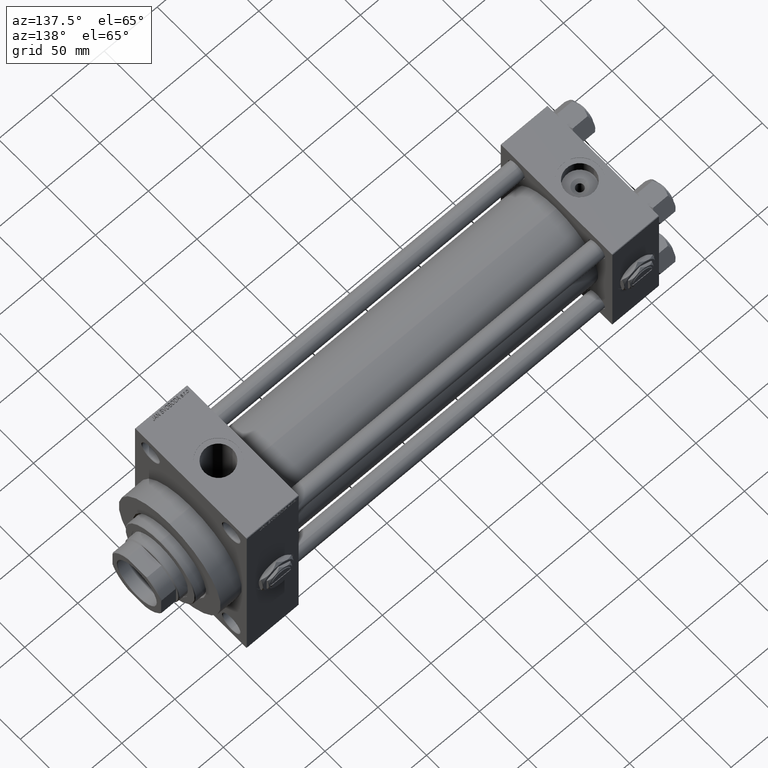
[diagram: clean part render]
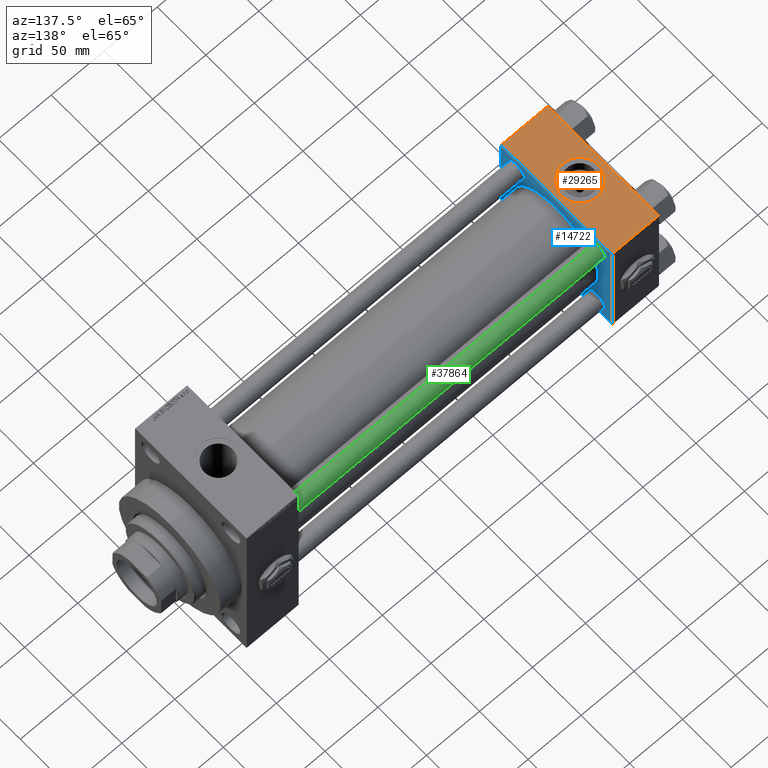
[diagram: same view with three faces highlighted in distinct colors, each labeled with its STEP entity id]
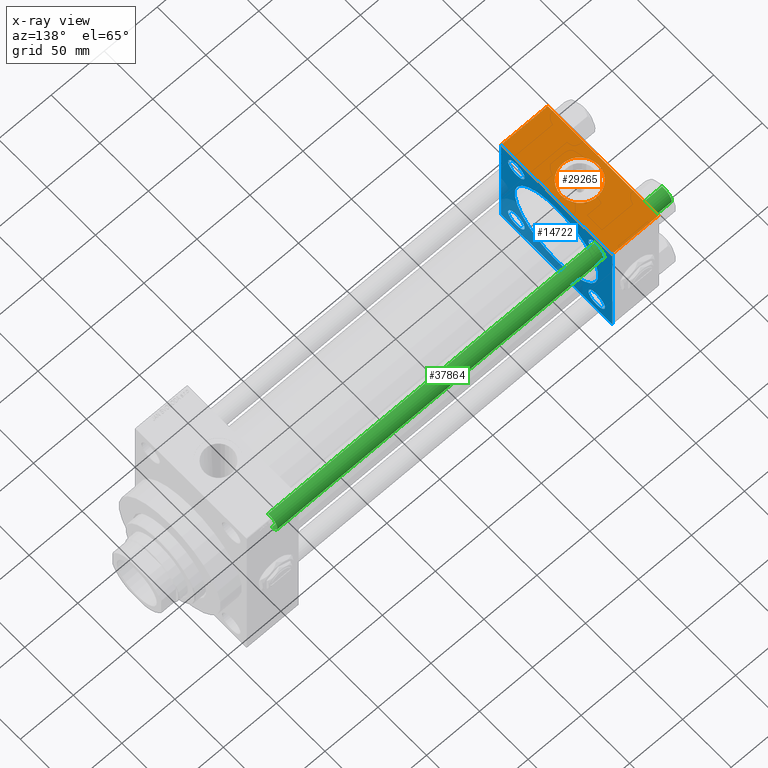
[diagram: x-ray of the same camera — body ghosted, the three highlighted faces saturated]
A machine part, auxiliary view with three faces highlighted in distinct colors.
The next image is the same camera in x-ray (body ghosted, the three faces saturated) — at least one of them is partly hidden behind the body in this view.
Their STEP definitions:

[orange] entity #29265 — the highlighted planar face has unit normal (0, 0, -1).
#936 = EDGE_CURVE ( 'NONE', #49717, #21281, #25876, .T. ) ;
#1018 = CARTESIAN_POINT ( 'NONE',  ( 44.00000000000000000, 57.49999999999999289, 57.50000000000000711 ) ) ;
#1052 = EDGE_CURVE ( 'NONE', #45989, #48460, #34886, .T. ) ;
#1973 = LINE ( 'NONE', #9288, #38261 ) ;
#2715 = CARTESIAN_POINT ( 'NONE',  ( 44.00000000000000000, -57.00000000000003553, 57.49999999999999289 ) ) ;
#2728 = VERTEX_POINT ( 'NONE', #46574 ) ;
#3112 = CARTESIAN_POINT ( 'NONE',  ( 0.000000000000000000, -57.00000000000003553, 57.49999999999999289 ) ) ;
#5319 = EDGE_CURVE ( 'NONE', #40228, #49717, #29425, .T. ) ;
#6004 = ORIENTED_EDGE ( 'NONE', *, *, #5319, .T. ) ;
#7018 = LINE ( 'NONE', #49097, #15883 ) ;
#7951 = DIRECTION ( 'NONE',  ( 1.000000000000000000, 0.000000000000000000, 0.000000000000000000 ) ) ;
#8478 = ORIENTED_EDGE ( 'NONE', *, *, #9591, .F. ) ;
#9288 = CARTESIAN_POINT ( 'NONE',  ( 0.000000000000000000, 57.00000000000000711, 57.50000000000000711 ) ) ;
#9591 = EDGE_CURVE ( 'NONE', #2728, #21281, #7018, .T. ) ;
#10241 = CARTESIAN_POINT ( 'NONE',  ( 44.00000000000000000, -57.00000000000003553, 57.49999999999999289 ) ) ;
#10556 = AXIS2_PLACEMENT_3D ( 'NONE', #1018, #28012, #20439 ) ;
#12458 = ORIENTED_EDGE ( 'NONE', *, *, #1052, .F. ) ;
#12819 = DIRECTION ( 'NONE',  ( -1.000000000000000000, 0.000000000000000000, 0.000000000000000000 ) ) ;
#14896 = EDGE_LOOP ( 'NONE', ( #6004, #20852, #8478, #36573 ) ) ;
#15883 = VECTOR ( 'NONE', #47920, 1000.000000000000000 ) ;
#18802 = AXIS2_PLACEMENT_3D ( 'NONE', #31401, #39203, #7951 ) ;
#19110 = CARTESIAN_POINT ( 'NONE',  ( 22.00000000000000000, -8.673617379884035472E-15, 57.50000000000000000 ) ) ;
#19950 = FACE_OUTER_BOUND ( 'NONE', #14896, .T. ) ;
#20439 = DIRECTION ( 'NONE',  ( 0.000000000000000000, 1.000000000000000000, 1.206764157201257045E-16 ) ) ;
#20852 = ORIENTED_EDGE ( 'NONE', *, *, #936, .T. ) ;
#21281 = VERTEX_POINT ( 'NONE', #2715 ) ;
#21360 = DIRECTION ( 'NONE',  ( 0.000000000000000000, -1.000000000000000000, -1.206764157201257045E-16 ) ) ;
#21842 = DIRECTION ( 'NONE',  ( 1.000000000000000000, 0.000000000000000000, 0.000000000000000000 ) ) ;
#25876 = LINE ( 'NONE', #10241, #30894 ) ;
#26902 = DIRECTION ( 'NONE',  ( 1.000000000000000000, 0.000000000000000000, 0.000000000000000000 ) ) ;
#28012 = DIRECTION ( 'NONE',  ( 0.000000000000000000, 1.206764157201257045E-16, -1.000000000000000000 ) ) ;
#29128 = CIRCLE ( 'NONE', #37158, 17.50000000000000000 ) ;
#29265 = ADVANCED_FACE ( 'NONE', ( #43119, #19950 ), #39097, .F. ) ;
#29425 = LINE ( 'NONE', #40015, #40662 ) ;
#29829 = EDGE_CURVE ( 'NONE', #48460, #45989, #29128, .T. ) ;
#30290 = CARTESIAN_POINT ( 'NONE',  ( 4.499999999999997335, -6.530485481376167224E-15, 57.50000000000000000 ) ) ;
#30894 = VECTOR ( 'NONE', #21842, 1000.000000000000000 ) ;
#31401 = CARTESIAN_POINT ( 'NONE',  ( 22.00000000000000000, -8.673617379884035472E-15, 57.50000000000000000 ) ) ;
#33682 = ORIENTED_EDGE ( 'NONE', *, *, #29829, .F. ) ;
#33975 = DIRECTION ( 'NONE',  ( 0.000000000000000000, 0.000000000000000000, 1.000000000000000000 ) ) ;
#34886 = CIRCLE ( 'NONE', #18802, 17.50000000000000000 ) ;
#36573 = ORIENTED_EDGE ( 'NONE', *, *, #43347, .T. ) ;
#37158 = AXIS2_PLACEMENT_3D ( 'NONE', #19110, #33975, #26902 ) ;
#38261 = VECTOR ( 'NONE', #12819, 1000.000000000000000 ) ;
#39080 = CARTESIAN_POINT ( 'NONE',  ( 0.000000000000000000, 57.00000000000000711, 57.50000000000000711 ) ) ;
#39097 = PLANE ( 'NONE',  #10556 ) ;
#39203 = DIRECTION ( 'NONE',  ( 0.000000000000000000, 0.000000000000000000, 1.000000000000000000 ) ) ;
#40015 = CARTESIAN_POINT ( 'NONE',  ( 0.000000000000000000, 57.49999999999999289, 57.50000000000000711 ) ) ;
#40228 = VERTEX_POINT ( 'NONE', #39080 ) ;
#40662 = VECTOR ( 'NONE', #21360, 1000.000000000000000 ) ;
#43119 = FACE_BOUND ( 'NONE', #44867, .T. ) ;
#43347 = EDGE_CURVE ( 'NONE', #2728, #40228, #1973, .T. ) ;
#44867 = EDGE_LOOP ( 'NONE', ( #33682, #12458 ) ) ;
#45989 = VERTEX_POINT ( 'NONE', #30290 ) ;
#46574 = CARTESIAN_POINT ( 'NONE',  ( 44.00000000000000000, 57.00000000000000711, 57.50000000000000711 ) ) ;
#47920 = DIRECTION ( 'NONE',  ( 0.000000000000000000, -1.000000000000000000, -1.206764157201257045E-16 ) ) ;
#48396 = CARTESIAN_POINT ( 'NONE',  ( 39.50000000000000000, -8.673617379884035472E-15, 57.50000000000000000 ) ) ;
#48460 = VERTEX_POINT ( 'NONE', #48396 ) ;
#49097 = CARTESIAN_POINT ( 'NONE',  ( 44.00000000000000000, 57.49999999999999289, 57.50000000000000711 ) ) ;
#49717 = VERTEX_POINT ( 'NONE', #3112 ) ;

[blue] entity #14722 — the highlighted planar face has unit normal (-1, 0, 0).
#271 = DIRECTION ( 'NONE',  ( -0.000000000000000000, 0.7071067811865376918, 0.7071067811865573427 ) ) ;
#321 = LINE ( 'NONE', #23006, #47059 ) ;
#413 = CIRCLE ( 'NONE', #35042, 8.500000000000007105 ) ;
#522 = FACE_OUTER_BOUND ( 'NONE', #1982, .T. ) ;
#557 = VERTEX_POINT ( 'NONE', #27599 ) ;
#628 = VERTEX_POINT ( 'NONE', #6385 ) ;
#760 = FACE_BOUND ( 'NONE', #24674, .T. ) ;
#814 = VERTEX_POINT ( 'NONE', #16410 ) ;
#1428 = VERTEX_POINT ( 'NONE', #28565 ) ;
#1535 = VERTEX_POINT ( 'NONE', #14655 ) ;
#1606 = AXIS2_PLACEMENT_3D ( 'NONE', #43040, #39762, #8510 ) ;
#1982 = EDGE_LOOP ( 'NONE', ( #37587, #22250, #45370, #42335, #19696, #2404, #26581, #33292 ) ) ;
#2086 = DIRECTION ( 'NONE',  ( 0.000000000000000000, 0.000000000000000000, 1.000000000000000000 ) ) ;
#2214 = DIRECTION ( 'NONE',  ( -1.000000000000000000, 0.000000000000000000, -0.000000000000000000 ) ) ;
#2404 = ORIENTED_EDGE ( 'NONE', *, *, #38446, .T. ) ;
#2715 = CARTESIAN_POINT ( 'NONE',  ( 44.00000000000000000, -57.00000000000003553, 57.49999999999999289 ) ) ;
#2728 = VERTEX_POINT ( 'NONE', #46574 ) ;
#3305 = DIRECTION ( 'NONE',  ( 0.000000000000000000, -0.7071067811865573427, 0.7071067811865376918 ) ) ;
#3402 = VERTEX_POINT ( 'NONE', #46149 ) ;
#3458 = CIRCLE ( 'NONE', #5038, 8.500000000000007105 ) ;
#3528 = VECTOR ( 'NONE', #271, 1000.000000000000114 ) ;
#3680 = CARTESIAN_POINT ( 'NONE',  ( 43.99999999999998579, 2.663896022368408223E-15, -43.00000000000000000 ) ) ;
#4287 = FACE_BOUND ( 'NONE', #17625, .T. ) ;
#4465 = EDGE_CURVE ( 'NONE', #48562, #1535, #321, .T. ) ;
#5038 = AXIS2_PLACEMENT_3D ( 'NONE', #26580, #38168, #42450 ) ;
#5365 = CARTESIAN_POINT ( 'NONE',  ( 43.99999999999998579, -2.602085213965210642E-15, 43.00000000000000000 ) ) ;
#5815 = CARTESIAN_POINT ( 'NONE',  ( 44.00000000000000000, -41.34999999999998721, 41.35000000000000853 ) ) ;
#6062 = VERTEX_POINT ( 'NONE', #17593 ) ;
#6359 = CARTESIAN_POINT ( 'NONE',  ( 44.00000000000000000, -57.50000000000000711, 57.49999999999999289 ) ) ;
#6385 = CARTESIAN_POINT ( 'NONE',  ( 44.00000000000000000, -41.34999999999998721, 32.85000000000000142 ) ) ;
#6605 = LINE ( 'NONE', #30562, #32626 ) ;
#6615 = EDGE_CURVE ( 'NONE', #26214, #3402, #24007, .T. ) ;
#6852 = AXIS2_PLACEMENT_3D ( 'NONE', #36750, #2214, #17601 ) ;
#6871 = VERTEX_POINT ( 'NONE', #20858 ) ;
#6880 = AXIS2_PLACEMENT_3D ( 'NONE', #31745, #47086, #12583 ) ;
#6888 = CARTESIAN_POINT ( 'NONE',  ( 44.00000000000000000, -41.34999999999998721, 41.35000000000000853 ) ) ;
#6948 = CARTESIAN_POINT ( 'NONE',  ( 44.00000000000000000, 57.49999999999999289, 57.00000000000003553 ) ) ;
#7018 = LINE ( 'NONE', #49097, #15883 ) ;
#8087 = CIRCLE ( 'NONE', #10494, 8.500000000000007105 ) ;
#8510 = DIRECTION ( 'NONE',  ( 0.000000000000000000, 0.000000000000000000, 1.000000000000000000 ) ) ;
#8908 = AXIS2_PLACEMENT_3D ( 'NONE', #13739, #25329, #9693 ) ;
#9298 = EDGE_LOOP ( 'NONE', ( #44463, #31875 ) ) ;
#9399 = DIRECTION ( 'NONE',  ( 0.000000000000000000, 0.000000000000000000, -1.000000000000000000 ) ) ;
#9591 = EDGE_CURVE ( 'NONE', #2728, #21281, #7018, .T. ) ;
#9693 = DIRECTION ( 'NONE',  ( 0.000000000000000000, 0.000000000000000000, 1.000000000000000000 ) ) ;
#10494 = AXIS2_PLACEMENT_3D ( 'NONE', #6888, #34369, #30348 ) ;
#10941 = CIRCLE ( 'NONE', #35890, 8.500000000000007105 ) ;
#11132 = EDGE_CURVE ( 'NONE', #49224, #6062, #31146, .T. ) ;
#11276 = EDGE_LOOP ( 'NONE', ( #45044, #45313 ) ) ;
#12127 = CARTESIAN_POINT ( 'NONE',  ( 44.00000000000000000, 0.000000000000000000, 0.000000000000000000 ) ) ;
#12412 = CARTESIAN_POINT ( 'NONE',  ( 44.00000000000000000, 57.49999999999999289, 57.50000000000000711 ) ) ;
#12583 = DIRECTION ( 'NONE',  ( 0.000000000000000000, 0.000000000000000000, 1.000000000000000000 ) ) ;
#13324 = VECTOR ( 'NONE', #49342, 1000.000000000000114 ) ;
#13739 = CARTESIAN_POINT ( 'NONE',  ( 44.00000000000000000, 41.34999999999999432, -41.35000000000000142 ) ) ;
#14655 = CARTESIAN_POINT ( 'NONE',  ( 44.00000000000000000, -57.00000000000000711, -57.50000000000000711 ) ) ;
#14722 = ADVANCED_FACE ( 'NONE', ( #4287, #19939, #760, #19692, #35073, #522 ), #15904, .F. ) ;
#15012 = VERTEX_POINT ( 'NONE', #3680 ) ;
#15883 = VECTOR ( 'NONE', #47920, 1000.000000000000000 ) ;
#15904 = PLANE ( 'NONE',  #32861 ) ;
#16141 = DIRECTION ( 'NONE',  ( -1.000000000000000000, 0.000000000000000000, -0.000000000000000000 ) ) ;
#16146 = LINE ( 'NONE', #31786, #18053 ) ;
#16410 = CARTESIAN_POINT ( 'NONE',  ( 44.00000000000000000, 41.34999999999999432, 49.85000000000001563 ) ) ;
#16684 = DIRECTION ( 'NONE',  ( -1.000000000000000000, 0.000000000000000000, -0.000000000000000000 ) ) ;
#16939 = DIRECTION ( 'NONE',  ( 0.000000000000000000, 0.000000000000000000, -1.000000000000000000 ) ) ;
#17593 = CARTESIAN_POINT ( 'NONE',  ( 44.00000000000000000, -41.34999999999998721, -32.85000000000000142 ) ) ;
#17601 = DIRECTION ( 'NONE',  ( 0.000000000000000000, 0.000000000000000000, 1.000000000000000000 ) ) ;
#17611 = ORIENTED_EDGE ( 'NONE', *, *, #33561, .T. ) ;
#17625 = EDGE_LOOP ( 'NONE', ( #40528, #17611 ) ) ;
#18053 = VECTOR ( 'NONE', #47133, 1000.000000000000114 ) ;
#18113 = LINE ( 'NONE', #33983, #13324 ) ;
#18405 = ORIENTED_EDGE ( 'NONE', *, *, #26330, .F. ) ;
#19441 = LINE ( 'NONE', #39324, #3528 ) ;
#19692 = FACE_BOUND ( 'NONE', #9298, .T. ) ;
#19696 = ORIENTED_EDGE ( 'NONE', *, *, #9591, .T. ) ;
#19910 = VERTEX_POINT ( 'NONE', #5365 ) ;
#19939 = FACE_BOUND ( 'NONE', #11276, .T. ) ;
#20754 = DIRECTION ( 'NONE',  ( -1.000000000000000000, 0.000000000000000000, -0.000000000000000000 ) ) ;
#20858 = CARTESIAN_POINT ( 'NONE',  ( 44.00000000000000000, 41.34999999999999432, -32.84999999999999432 ) ) ;
#21281 = VERTEX_POINT ( 'NONE', #2715 ) ;
#21945 = ORIENTED_EDGE ( 'NONE', *, *, #23539, .F. ) ;
#22233 = AXIS2_PLACEMENT_3D ( 'NONE', #29056, #48916, #48662 ) ;
#22250 = ORIENTED_EDGE ( 'NONE', *, *, #40270, .T. ) ;
#22993 = VECTOR ( 'NONE', #16939, 1000.000000000000000 ) ;
#23006 = CARTESIAN_POINT ( 'NONE',  ( 44.00000000000000000, 57.49999999999999289, -57.49999999999999289 ) ) ;
#23352 = CIRCLE ( 'NONE', #1606, 43.00000000000000000 ) ;
#23539 = EDGE_CURVE ( 'NONE', #15012, #19910, #23352, .T. ) ;
#23814 = CARTESIAN_POINT ( 'NONE',  ( 43.99999999999998579, -2.602085213965210642E-15, 0.000000000000000000 ) ) ;
#24007 = LINE ( 'NONE', #12412, #22993 ) ;
#24550 = CARTESIAN_POINT ( 'NONE',  ( 44.00000000000000000, 41.34999999999999432, -49.85000000000001563 ) ) ;
#24674 = EDGE_LOOP ( 'NONE', ( #41786, #31934 ) ) ;
#24989 = CARTESIAN_POINT ( 'NONE',  ( 44.00000000000000000, -57.50000000000000711, -57.00000000000000711 ) ) ;
#25329 = DIRECTION ( 'NONE',  ( -1.000000000000000000, 0.000000000000000000, -0.000000000000000000 ) ) ;
#25551 = VERTEX_POINT ( 'NONE', #24550 ) ;
#26214 = VERTEX_POINT ( 'NONE', #6948 ) ;
#26330 = EDGE_CURVE ( 'NONE', #19910, #15012, #41828, .T. ) ;
#26546 = AXIS2_PLACEMENT_3D ( 'NONE', #23814, #42956, #43213 ) ;
#26580 = CARTESIAN_POINT ( 'NONE',  ( 44.00000000000000000, -41.34999999999998721, -41.35000000000000853 ) ) ;
#26581 = ORIENTED_EDGE ( 'NONE', *, *, #42070, .T. ) ;
#27089 = EDGE_CURVE ( 'NONE', #1428, #628, #8087, .T. ) ;
#27599 = CARTESIAN_POINT ( 'NONE',  ( 44.00000000000000000, 41.34999999999999432, 32.84999999999999432 ) ) ;
#27879 = EDGE_CURVE ( 'NONE', #6871, #25551, #45920, .T. ) ;
#28153 = VERTEX_POINT ( 'NONE', #36862 ) ;
#28565 = CARTESIAN_POINT ( 'NONE',  ( 44.00000000000000000, -41.34999999999998721, 49.85000000000002274 ) ) ;
#28583 = CARTESIAN_POINT ( 'NONE',  ( 44.00000000000000000, 41.34999999999999432, 41.35000000000000142 ) ) ;
#29056 = CARTESIAN_POINT ( 'NONE',  ( 44.00000000000000000, -41.34999999999998721, -41.35000000000000853 ) ) ;
#29275 = DIRECTION ( 'NONE',  ( 0.000000000000000000, 0.000000000000000000, 1.000000000000000000 ) ) ;
#30348 = DIRECTION ( 'NONE',  ( 0.000000000000000000, 0.000000000000000000, 1.000000000000000000 ) ) ;
#30562 = CARTESIAN_POINT ( 'NONE',  ( 44.00000000000000000, 57.00000000000000711, 57.50000000000000711 ) ) ;
#31146 = CIRCLE ( 'NONE', #22233, 8.500000000000007105 ) ;
#31745 = CARTESIAN_POINT ( 'NONE',  ( 44.00000000000000000, 41.34999999999999432, -41.35000000000000142 ) ) ;
#31786 = CARTESIAN_POINT ( 'NONE',  ( 44.00000000000000000, -57.00000000000000711, -57.50000000000000711 ) ) ;
#31801 = VECTOR ( 'NONE', #9399, 1000.000000000000000 ) ;
#31843 = CIRCLE ( 'NONE', #6880, 8.500000000000007105 ) ;
#31875 = ORIENTED_EDGE ( 'NONE', *, *, #42037, .T. ) ;
#31934 = ORIENTED_EDGE ( 'NONE', *, *, #27089, .T. ) ;
#32626 = VECTOR ( 'NONE', #3305, 1000.000000000000114 ) ;
#32861 = AXIS2_PLACEMENT_3D ( 'NONE', #12127, #16141, #47819 ) ;
#33292 = ORIENTED_EDGE ( 'NONE', *, *, #36852, .T. ) ;
#33561 = EDGE_CURVE ( 'NONE', #6062, #49224, #3458, .T. ) ;
#33983 = CARTESIAN_POINT ( 'NONE',  ( 44.00000000000000000, -57.50000000000000711, 57.00000000000000711 ) ) ;
#34369 = DIRECTION ( 'NONE',  ( -1.000000000000000000, 0.000000000000000000, -0.000000000000000000 ) ) ;
#35042 = AXIS2_PLACEMENT_3D ( 'NONE', #28583, #20754, #2086 ) ;
#35073 = FACE_BOUND ( 'NONE', #42569, .T. ) ;
#35890 = AXIS2_PLACEMENT_3D ( 'NONE', #5815, #16684, #29275 ) ;
#36750 = CARTESIAN_POINT ( 'NONE',  ( 44.00000000000000000, 41.34999999999999432, 41.35000000000000142 ) ) ;
#36852 = EDGE_CURVE ( 'NONE', #37870, #1535, #16146, .T. ) ;
#36862 = CARTESIAN_POINT ( 'NONE',  ( 44.00000000000000000, -57.50000000000000711, 57.00000000000000711 ) ) ;
#37587 = ORIENTED_EDGE ( 'NONE', *, *, #4465, .F. ) ;
#37793 = CARTESIAN_POINT ( 'NONE',  ( 44.00000000000000000, 57.00000000000002132, -57.49999999999999289 ) ) ;
#37870 = VERTEX_POINT ( 'NONE', #24989 ) ;
#38168 = DIRECTION ( 'NONE',  ( -1.000000000000000000, 0.000000000000000000, -0.000000000000000000 ) ) ;
#38327 = CARTESIAN_POINT ( 'NONE',  ( 44.00000000000000000, -41.34999999999998721, -49.85000000000002274 ) ) ;
#38446 = EDGE_CURVE ( 'NONE', #21281, #28153, #18113, .T. ) ;
#39324 = CARTESIAN_POINT ( 'NONE',  ( 44.00000000000000000, 57.49999999999999289, -57.00000000000000711 ) ) ;
#39762 = DIRECTION ( 'NONE',  ( 1.000000000000000000, -0.000000000000000000, 0.000000000000000000 ) ) ;
#40270 = EDGE_CURVE ( 'NONE', #48562, #3402, #19441, .T. ) ;
#40528 = ORIENTED_EDGE ( 'NONE', *, *, #11132, .T. ) ;
#41440 = EDGE_CURVE ( 'NONE', #557, #814, #45477, .T. ) ;
#41786 = ORIENTED_EDGE ( 'NONE', *, *, #43987, .T. ) ;
#41828 = CIRCLE ( 'NONE', #26546, 43.00000000000000000 ) ;
#42037 = EDGE_CURVE ( 'NONE', #814, #557, #413, .T. ) ;
#42070 = EDGE_CURVE ( 'NONE', #28153, #37870, #43939, .T. ) ;
#42150 = EDGE_CURVE ( 'NONE', #26214, #2728, #6605, .T. ) ;
#42335 = ORIENTED_EDGE ( 'NONE', *, *, #42150, .T. ) ;
#42450 = DIRECTION ( 'NONE',  ( 0.000000000000000000, 0.000000000000000000, 1.000000000000000000 ) ) ;
#42569 = EDGE_LOOP ( 'NONE', ( #18405, #21945 ) ) ;
#42900 = DIRECTION ( 'NONE',  ( 0.000000000000000000, -1.000000000000000000, -1.206764157201257045E-16 ) ) ;
#42956 = DIRECTION ( 'NONE',  ( 1.000000000000000000, -0.000000000000000000, 0.000000000000000000 ) ) ;
#43040 = CARTESIAN_POINT ( 'NONE',  ( 43.99999999999998579, -2.602085213965210642E-15, 0.000000000000000000 ) ) ;
#43213 = DIRECTION ( 'NONE',  ( 0.000000000000000000, 0.000000000000000000, 1.000000000000000000 ) ) ;
#43267 = EDGE_CURVE ( 'NONE', #25551, #6871, #31843, .T. ) ;
#43939 = LINE ( 'NONE', #6359, #31801 ) ;
#43987 = EDGE_CURVE ( 'NONE', #628, #1428, #10941, .T. ) ;
#44463 = ORIENTED_EDGE ( 'NONE', *, *, #41440, .T. ) ;
#45044 = ORIENTED_EDGE ( 'NONE', *, *, #43267, .T. ) ;
#45313 = ORIENTED_EDGE ( 'NONE', *, *, #27879, .T. ) ;
#45370 = ORIENTED_EDGE ( 'NONE', *, *, #6615, .F. ) ;
#45477 = CIRCLE ( 'NONE', #6852, 8.500000000000007105 ) ;
#45920 = CIRCLE ( 'NONE', #8908, 8.500000000000007105 ) ;
#46149 = CARTESIAN_POINT ( 'NONE',  ( 44.00000000000000000, 57.49999999999999289, -57.00000000000000711 ) ) ;
#46574 = CARTESIAN_POINT ( 'NONE',  ( 44.00000000000000000, 57.00000000000000711, 57.50000000000000711 ) ) ;
#47059 = VECTOR ( 'NONE', #42900, 1000.000000000000000 ) ;
#47086 = DIRECTION ( 'NONE',  ( -1.000000000000000000, 0.000000000000000000, -0.000000000000000000 ) ) ;
#47133 = DIRECTION ( 'NONE',  ( 0.000000000000000000, 0.7071067811865474617, -0.7071067811865474617 ) ) ;
#47819 = DIRECTION ( 'NONE',  ( -0.000000000000000000, 0.000000000000000000, 1.000000000000000000 ) ) ;
#47920 = DIRECTION ( 'NONE',  ( 0.000000000000000000, -1.000000000000000000, -1.206764157201257045E-16 ) ) ;
#48562 = VERTEX_POINT ( 'NONE', #37793 ) ;
#48662 = DIRECTION ( 'NONE',  ( 0.000000000000000000, 0.000000000000000000, 1.000000000000000000 ) ) ;
#48916 = DIRECTION ( 'NONE',  ( -1.000000000000000000, 0.000000000000000000, -0.000000000000000000 ) ) ;
#49097 = CARTESIAN_POINT ( 'NONE',  ( 44.00000000000000000, 57.49999999999999289, 57.50000000000000711 ) ) ;
#49224 = VERTEX_POINT ( 'NONE', #38327 ) ;
#49342 = DIRECTION ( 'NONE',  ( -0.000000000000000000, -0.7071067811865376918, -0.7071067811865573427 ) ) ;

[green] entity #37864 — the highlighted cylindrical surface (edge-blend (fillet) strip) has radius 8 mm, axis along (-1, -0, 0).
#953 = ORIENTED_EDGE ( 'NONE', *, *, #32717, .F. ) ;
#1441 = VERTEX_POINT ( 'NONE', #48182 ) ;
#2524 = FACE_OUTER_BOUND ( 'NONE', #22693, .T. ) ;
#4126 = DIRECTION ( 'NONE',  ( 1.000000000000000000, 0.000000000000000000, 0.000000000000000000 ) ) ;
#5571 = DIRECTION ( 'NONE',  ( -1.000000000000000000, 0.000000000000000000, 0.000000000000000000 ) ) ;
#7353 = LINE ( 'NONE', #26264, #45455 ) ;
#7433 = AXIS2_PLACEMENT_3D ( 'NONE', #30875, #19526, #4126 ) ;
#7901 = DIRECTION ( 'NONE',  ( 1.000000000000000000, 0.000000000000000000, 0.000000000000000000 ) ) ;
#8713 = DIRECTION ( 'NONE',  ( -0.000000000000000000, -0.000000000000000000, -1.000000000000000000 ) ) ;
#9201 = AXIS2_PLACEMENT_3D ( 'NONE', #34880, #42431, #7901 ) ;
#9604 = DIRECTION ( 'NONE',  ( -0.000000000000000000, -0.000000000000000000, -1.000000000000000000 ) ) ;
#10343 = CYLINDRICAL_SURFACE ( 'NONE', #11652, 8.000000000000000000 ) ;
#10375 = DIRECTION ( 'NONE',  ( -0.000000000000000000, -0.000000000000000000, -1.000000000000000000 ) ) ;
#11652 = AXIS2_PLACEMENT_3D ( 'NONE', #25724, #9604, #5571 ) ;
#15247 = CARTESIAN_POINT ( 'NONE',  ( 8.000000000000000000, 9.797174393178825657E-16, 372.5000000000000000 ) ) ;
#16606 = ORIENTED_EDGE ( 'NONE', *, *, #36407, .T. ) ;
#17158 = VERTEX_POINT ( 'NONE', #15247 ) ;
#19526 = DIRECTION ( 'NONE',  ( 0.000000000000000000, 0.000000000000000000, -1.000000000000000000 ) ) ;
#19842 = VERTEX_POINT ( 'NONE', #49513 ) ;
#22693 = EDGE_LOOP ( 'NONE', ( #32926, #42819, #16606, #953 ) ) ;
#23700 = CIRCLE ( 'NONE', #9201, 8.000000000000000000 ) ;
#24549 = CARTESIAN_POINT ( 'NONE',  ( 8.000000000000000000, 9.797174393178825657E-16, 0.5000000000000559552 ) ) ;
#25724 = CARTESIAN_POINT ( 'NONE',  ( 0.000000000000000000, 0.000000000000000000, 373.0000000000000000 ) ) ;
#26264 = CARTESIAN_POINT ( 'NONE',  ( 8.000000000000000000, 9.797174393178825657E-16, 373.0000000000000000 ) ) ;
#30285 = VERTEX_POINT ( 'NONE', #24549 ) ;
#30875 = CARTESIAN_POINT ( 'NONE',  ( 0.000000000000000000, 0.000000000000000000, 372.5000000000000000 ) ) ;
#32252 = EDGE_CURVE ( 'NONE', #19842, #17158, #35623, .T. ) ;
#32717 = EDGE_CURVE ( 'NONE', #19842, #1441, #38969, .T. ) ;
#32926 = ORIENTED_EDGE ( 'NONE', *, *, #32252, .T. ) ;
#34880 = CARTESIAN_POINT ( 'NONE',  ( 0.000000000000000000, 0.000000000000000000, 0.5000000000000559552 ) ) ;
#35623 = CIRCLE ( 'NONE', #7433, 8.000000000000000000 ) ;
#36407 = EDGE_CURVE ( 'NONE', #30285, #1441, #23700, .T. ) ;
#37524 = EDGE_CURVE ( 'NONE', #17158, #30285, #7353, .T. ) ;
#37864 = ADVANCED_FACE ( 'NONE', ( #2524 ), #10343, .T. ) ;
#38969 = LINE ( 'NONE', #43752, #48471 ) ;
#42431 = DIRECTION ( 'NONE',  ( -0.000000000000000000, -0.000000000000000000, 1.000000000000000000 ) ) ;
#42819 = ORIENTED_EDGE ( 'NONE', *, *, #37524, .T. ) ;
#43752 = CARTESIAN_POINT ( 'NONE',  ( -8.000000000000000000, 0.000000000000000000, 373.0000000000000000 ) ) ;
#45455 = VECTOR ( 'NONE', #10375, 1000.000000000000000 ) ;
#48182 = CARTESIAN_POINT ( 'NONE',  ( -8.000000000000000000, 0.000000000000000000, 0.5000000000000559552 ) ) ;
#48471 = VECTOR ( 'NONE', #8713, 1000.000000000000000 ) ;
#49513 = CARTESIAN_POINT ( 'NONE',  ( -8.000000000000000000, 0.000000000000000000, 372.5000000000000000 ) ) ;